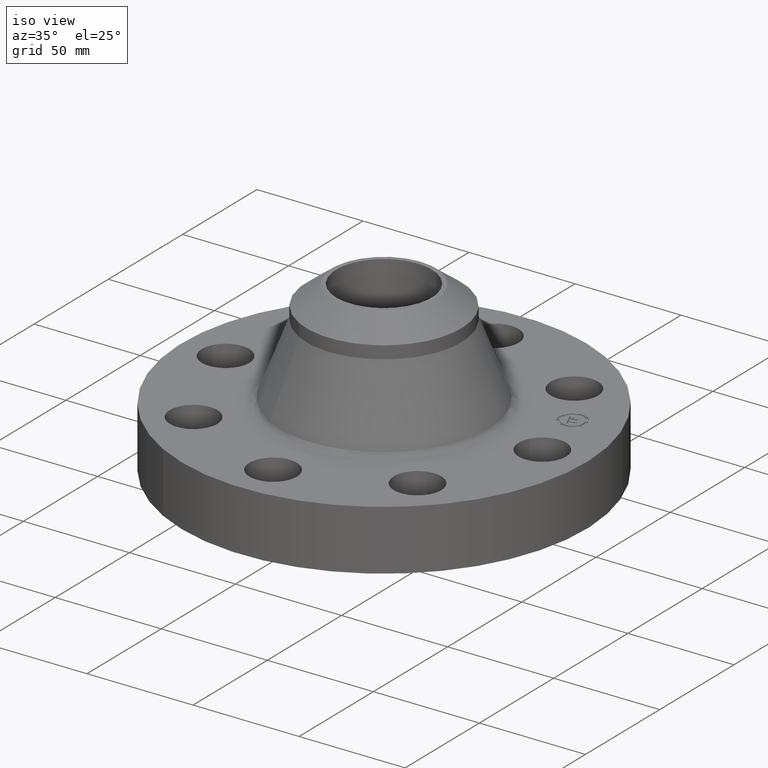
[diagram: clean part render]
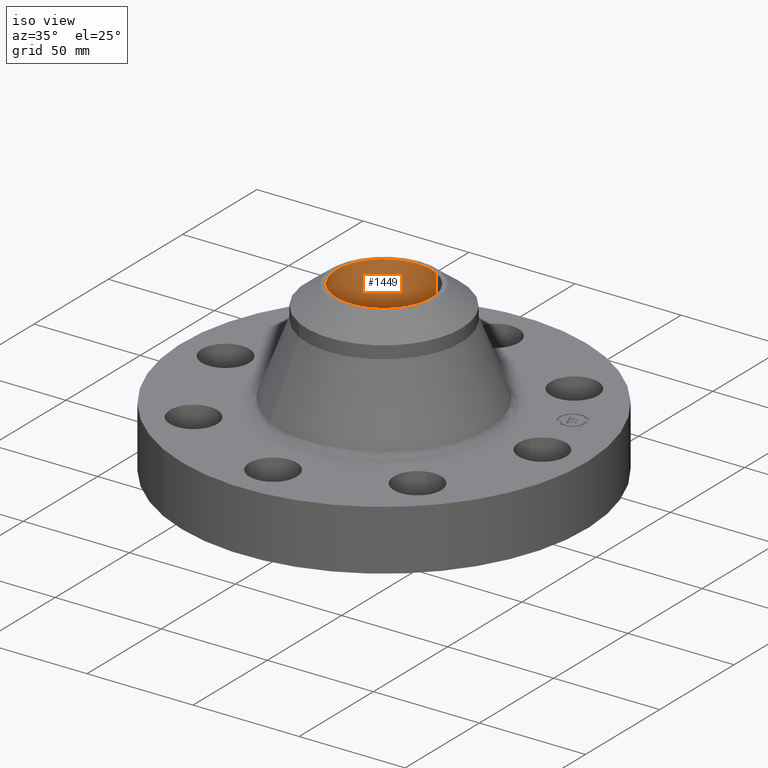
[diagram: same view with one face highlighted and labeled with its STEP entity id]
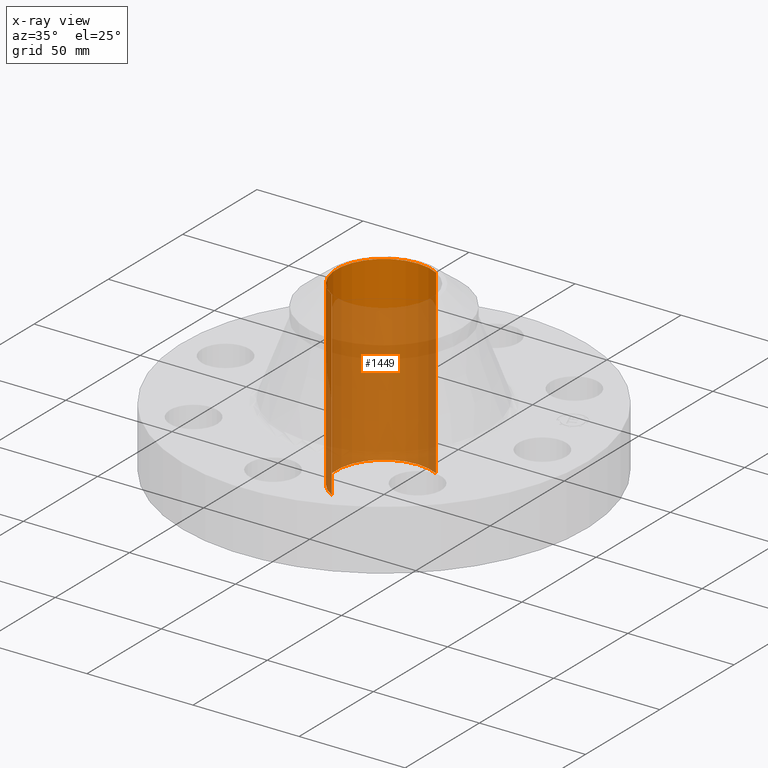
[diagram: x-ray of the same camera — body ghosted, the highlighted face saturated]
A machine part, iso view. The second image highlights one B-rep face of the part: STEP entity #1449.
The next image is the same camera in x-ray: the body ghosted, the highlighted face saturated — about 78% of this face is hidden behind the body in this view.
In plain terms, the highlighted cylindrical surface (partial cylindrical patch) has radius 22.4917 mm, axis along (-0, 0, -1).
Its self-contained STEP definition (entity closure, byte-faithful):
#1127=AXIS2_PLACEMENT_3D('Circle Axis2P3D',#1125,#1126,$) ;
#1436=AXIS2_PLACEMENT_3D('Cylinder Axis2P3D',#1433,#1434,#1435) ;
#1440=AXIS2_PLACEMENT_3D('Circle Axis2P3D',#1438,#1439,$) ;
#1120=CARTESIAN_POINT('Vertex',(0.424531314405,0.777099358584,-0.250000000001)) ;
#1122=CARTESIAN_POINT('Vertex',(-0.424531314436,-0.777099358557,-0.250000000013)) ;
#1125=CARTESIAN_POINT('Axis2P3D Location',(1.28117289306E-011,-8.10298460001E-012,-0.250000000001)) ;
#1404=CARTESIAN_POINT('Vertex',(0.424531314436,0.777099358557,3.12000000003)) ;
#1406=CARTESIAN_POINT('Vertex',(-0.424531314405,-0.777099358589,3.12000000001)) ;
#1409=CARTESIAN_POINT('Line Origine',(0.424531314436,0.777099358557,1.43500000001)) ;
#1414=CARTESIAN_POINT('Line Origine',(-0.424531314436,-0.777099358557,1.43500000001)) ;
#1433=CARTESIAN_POINT('Axis2P3D Location',(0.,0.,1.43500000001)) ;
#1438=CARTESIAN_POINT('Axis2P3D Location',(0.,0.,3.12000000003)) ;
#1126=DIRECTION('Axis2P3D Direction',(0.,0.,-0.0393700787402)) ;
#1410=DIRECTION('Vector Direction',(0.,0.,-0.0393700787402)) ;
#1415=DIRECTION('Vector Direction',(0.,0.,-0.0393700787402)) ;
#1434=DIRECTION('Axis2P3D Direction',(-0.,0.,-0.0393700787402)) ;
#1435=DIRECTION('Axis2P3D XDirection',(-0.0188750212049,-0.0345504945626,0.)) ;
#1439=DIRECTION('Axis2P3D Direction',(-0.,0.,-0.0393700787402)) ;
#1411=VECTOR('Line Direction',#1410,0.0393700787402) ;
#1416=VECTOR('Line Direction',#1415,0.0393700787402) ;
#1444=ORIENTED_EDGE('',*,*,#1442,.F.) ;
#1445=ORIENTED_EDGE('',*,*,#1418,.T.) ;
#1446=ORIENTED_EDGE('',*,*,#1129,.T.) ;
#1447=ORIENTED_EDGE('',*,*,#1413,.F.) ;
#1449=ADVANCED_FACE('PartBody',(#1448),#1437,.F.) ;
#1128=CIRCLE('generated circle',#1127,0.885500000013) ;
#1441=CIRCLE('generated circle',#1440,0.885500000004) ;
#1437=CYLINDRICAL_SURFACE('generated cylinder',#1436,0.885500000004) ;
#1129=EDGE_CURVE('',#1123,#1121,#1128,.T.) ;
#1413=EDGE_CURVE('',#1405,#1121,#1412,.T.) ;
#1418=EDGE_CURVE('',#1407,#1123,#1417,.T.) ;
#1442=EDGE_CURVE('',#1407,#1405,#1441,.T.) ;
#1443=EDGE_LOOP('',(#1444,#1445,#1446,#1447)) ;
#1448=FACE_OUTER_BOUND('',#1443,.T.) ;
#1412=LINE('Line',#1409,#1411) ;
#1417=LINE('Line',#1414,#1416) ;
#1121=VERTEX_POINT('',#1120) ;
#1123=VERTEX_POINT('',#1122) ;
#1405=VERTEX_POINT('',#1404) ;
#1407=VERTEX_POINT('',#1406) ;